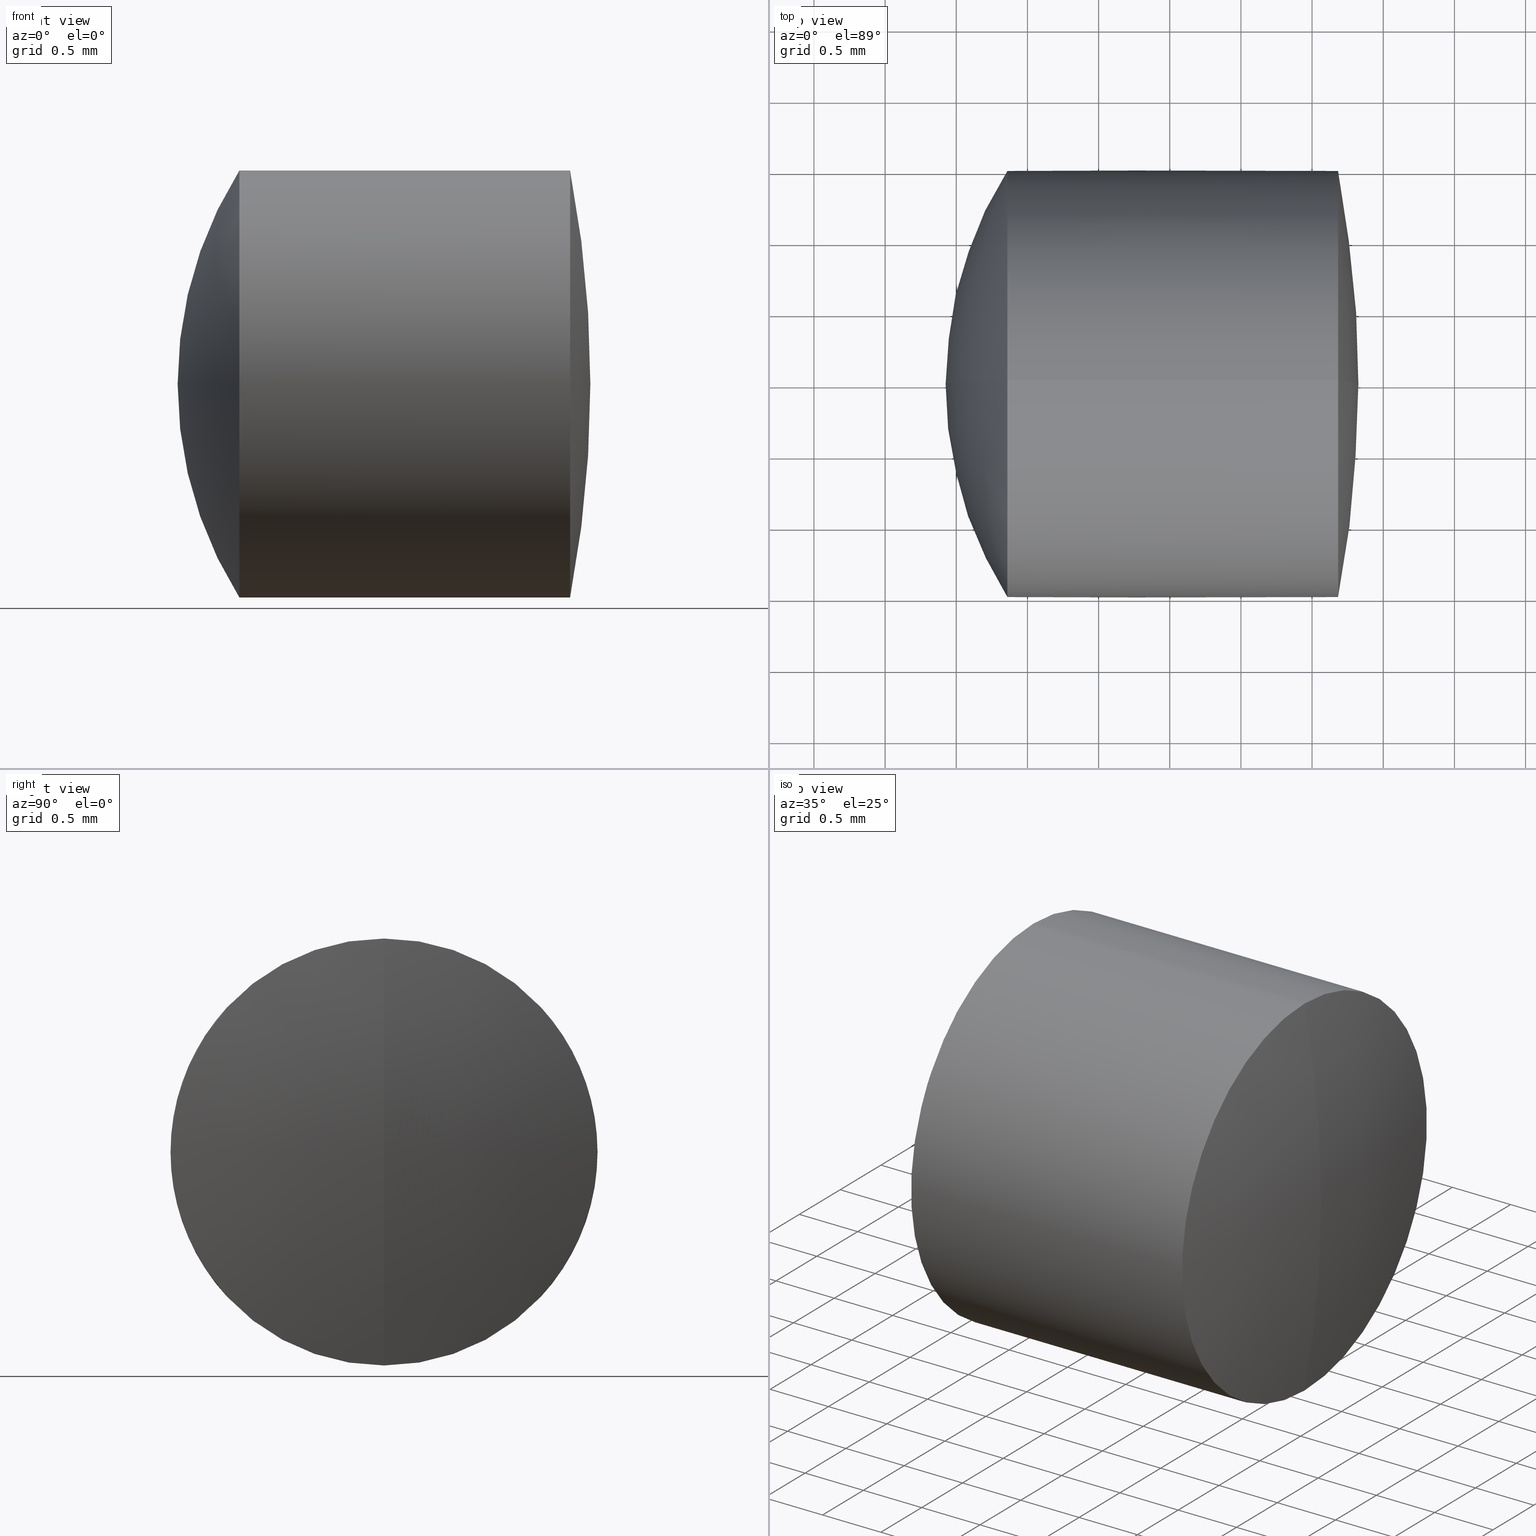
[diagram: canonical four-view strip — front | top / right | iso, engineering-drawing reading convention]
A machine part, canonical four-view strip (front | top / right | iso — engineering-drawing reading convention). The complete STEP part file that produces these views, byte-faithful:
ISO-10303-21;
HEADER;
FILE_DESCRIPTION (( 'STEP AP214' ),
    '1' );
FILE_NAME ('145000.STEP',
    '2019-08-09T06:44:41',
    ( 'user' ),
    ( '΢���й�' ),
    'SwSTEP 2.0',
    'SolidWorks 2016',
    '' );
FILE_SCHEMA (( 'AUTOMOTIVE_DESIGN' ));
ENDSEC;

DATA;
#1 = DIRECTION ( 'NONE',  ( -1.000000000000000000, -0.0000000000000000000, -0.0000000000000000000 ) ) ;
#2 = AXIS2_PLACEMENT_3D ( 'NONE', #113, #85, #119 ) ;
#3 =( LENGTH_UNIT ( ) NAMED_UNIT ( * ) SI_UNIT ( .MILLI., .METRE. ) );
#4 = ORIENTED_EDGE ( 'NONE', *, *, #343, .F. ) ;
#5 = CARTESIAN_POINT ( 'NONE',  ( 0.3590600832153031400, 0.0000000000000000000, 0.0000000000000000000 ) ) ;
#6 = AXIS2_PLACEMENT_3D ( 'NONE', #169, #331, #142 ) ;
#7 = DIRECTION ( 'NONE',  ( 0.0000000000000000000, -1.000000000000000000, 0.0000000000000000000 ) ) ;
#8 = DIRECTION ( 'NONE',  ( 0.0000000000000000000, 1.000000000000000000, -0.0000000000000000000 ) ) ;
#9 = PRODUCT_RELATED_PRODUCT_CATEGORY ( 'part', '', ( #313 ) ) ;
#10 = DIRECTION ( 'NONE',  ( 0.0000000000000000000, 1.224646799147353200E-016, -1.000000000000000000 ) ) ;
#11 =( GEOMETRIC_REPRESENTATION_CONTEXT ( 3 ) GLOBAL_UNCERTAINTY_ASSIGNED_CONTEXT ( ( #160 ) ) GLOBAL_UNIT_ASSIGNED_CONTEXT ( ( #321, #134, #288 ) ) REPRESENTATION_CONTEXT ( 'NONE', 'WORKASPACE' ) );
#12 = VERTEX_POINT ( 'NONE', #276 ) ;
#13 = DIRECTION ( 'NONE',  ( 0.0000000000000000000, 0.0000000000000000000, 1.000000000000000000 ) ) ;
#14 = SPHERICAL_SURFACE ( 'NONE', #173, 1.848000000000013600 ) ;
#15 = EDGE_CURVE ( 'NONE', #262, #80, #70, .T. ) ;
#16 = ORIENTED_EDGE ( 'NONE', *, *, #116, .T. ) ;
#17 = ORIENTED_EDGE ( 'NONE', *, *, #205, .F. ) ;
#18 = ADVANCED_FACE ( 'NONE', ( #214 ), #78, .T. ) ;
#19 = CYLINDRICAL_SURFACE ( 'NONE', #48, 1.500000000000000000 ) ;
#20 = CYLINDRICAL_SURFACE ( 'NONE', #2, 1.500000000000000000 ) ;
#21 = CARTESIAN_POINT ( 'NONE',  ( 2.825212435233174900, 0.0000000000000000000, -4.874094260606465300E-016 ) ) ;
#22 = CARTESIAN_POINT ( 'NONE',  ( 1.256612268473860800, 0.0000000000000000000, -1.500000000000000000 ) ) ;
#23 = SURFACE_STYLE_FILL_AREA ( #216 ) ;
#24 = FILL_AREA_STYLE ('',( #136 ) ) ;
#25 = ORIENTED_EDGE ( 'NONE', *, *, #277, .F. ) ;
#26 = CARTESIAN_POINT ( 'NONE',  ( 0.1772124352331610800, 0.0000000000000000000, 0.0000000000000000000 ) ) ;
#27 =( GEOMETRIC_REPRESENTATION_CONTEXT ( 3 ) GLOBAL_UNCERTAINTY_ASSIGNED_CONTEXT ( ( #92 ) ) GLOBAL_UNIT_ASSIGNED_CONTEXT ( ( #259, #72, #232 ) ) REPRESENTATION_CONTEXT ( 'NONE', 'WORKASPACE' ) );
#28 = VERTEX_POINT ( 'NONE', #146 ) ;
#29 = CARTESIAN_POINT ( 'NONE',  ( -0.5519199926577972300, 0.0000000000000000000, 1.500000000000000000 ) ) ;
#30 = SURFACE_SIDE_STYLE ('',( #23 ) ) ;
#31 = CARTESIAN_POINT ( 'NONE',  ( -5.134787564766825500, 0.0000000000000000000, 0.0000000000000000000 ) ) ;
#32 = CIRCLE ( 'NONE', #295, 1.500000000000000000 ) ;
#33 = FACE_OUTER_BOUND ( 'NONE', #247, .T. ) ;
#34 = UNCERTAINTY_MEASURE_WITH_UNIT (LENGTH_MEASURE( 1.000000000000000100E-005 ), #193, 'distance_accuracy_value', 'NONE');
#35 = ORIENTED_EDGE ( 'NONE', *, *, #343, .T. ) ;
#36 = CARTESIAN_POINT ( 'NONE',  ( 2.735212435233160800, 0.0000000000000000000, -7.764961720386270900E-019 ) ) ;
#37 = DIRECTION ( 'NONE',  ( 0.0000000000000000000, 1.000000000000000000, -0.0000000000000000000 ) ) ;
#38 = STYLED_ITEM ( 'NONE', ( #345 ), #221 ) ;
#39 = ORIENTED_EDGE ( 'NONE', *, *, #205, .T. ) ;
#40 = AXIS2_PLACEMENT_3D ( 'NONE', #285, #96, #258 ) ;
#41 = CYLINDRICAL_SURFACE ( 'NONE', #120, 1.500000000000000000 ) ;
#42 = ORIENTED_EDGE ( 'NONE', *, *, #129, .F. ) ;
#43 = VECTOR ( 'NONE', #213, 1000.000000000000000 ) ;
#44 = ORIENTED_EDGE ( 'NONE', *, *, #150, .T. ) ;
#45 = ADVANCED_FACE ( 'NONE', ( #122 ), #149, .T. ) ;
#46 = PRESENTATION_LAYER_ASSIGNMENT (  '', '', ( #38 ) ) ;
#47 = ORIENTED_EDGE ( 'NONE', *, *, #273, .F. ) ;
#48 = AXIS2_PLACEMENT_3D ( 'NONE', #223, #157, #13 ) ;
#49 = CYLINDRICAL_SURFACE ( 'NONE', #133, 1.500000000000000000 ) ;
#50 = CIRCLE ( 'NONE', #89, 1.500000000000000000 ) ;
#51 = DIRECTION ( 'NONE',  ( 0.0000000000000000000, 1.000000000000000000, 0.0000000000000000000 ) ) ;
#52 = CARTESIAN_POINT ( 'NONE',  ( -0.5519199926577972300, 0.0000000000000000000, 0.0000000000000000000 ) ) ;
#53 = DIRECTION ( 'NONE',  ( -1.000000000000000000, -0.0000000000000000000, -0.0000000000000000000 ) ) ;
#54 = DIRECTION ( 'NONE',  ( 0.0000000000000000000, 0.0000000000000000000, 1.000000000000000000 ) ) ;
#55 = ORIENTED_EDGE ( 'NONE', *, *, #129, .T. ) ;
#56 = PRESENTATION_LAYER_ASSIGNMENT (  '', '', ( #97 ) ) ;
#57 = DIRECTION ( 'NONE',  ( 0.0000000000000000000, -1.224646799147353200E-016, 1.000000000000000000 ) ) ;
#58 = APPLICATION_PROTOCOL_DEFINITION ( 'draft international standard', 'automotive_design', 1998, #240 ) ;
#59 = AXIS2_PLACEMENT_3D ( 'NONE', #328, #139, #294 ) ;
#60 = APPLICATION_CONTEXT ( 'automotive_design' ) ;
#61 = EDGE_LOOP ( 'NONE', ( #39, #320, #47 ) ) ;
#62 = CARTESIAN_POINT ( 'NONE',  ( 0.1772124352331610800, 0.0000000000000000000, 0.0000000000000000000 ) ) ;
#63 = VECTOR ( 'NONE', #104, 1000.000000000000000 ) ;
#64 = ORIENTED_EDGE ( 'NONE', *, *, #168, .F. ) ;
#65 = DIRECTION ( 'NONE',  ( -0.0000000000000000000, -1.000000000000000000, -0.0000000000000000000 ) ) ;
#66 = EDGE_CURVE ( 'NONE', #124, #256, #284, .T. ) ;
#67 = ORIENTED_EDGE ( 'NONE', *, *, #155, .F. ) ;
#68 = EDGE_LOOP ( 'NONE', ( #141, #309, #93 ) ) ;
#69 = ADVANCED_FACE ( 'NONE', ( #195 ), #49, .T. ) ;
#70 = CIRCLE ( 'NONE', #90, 7.960000000000000000 ) ;
#71 = EDGE_LOOP ( 'NONE', ( #153, #117, #64 ) ) ;
#72 =( NAMED_UNIT ( * ) PLANE_ANGLE_UNIT ( ) SI_UNIT ( $, .RADIAN. ) );
#73 = DIRECTION ( 'NONE',  ( -1.000000000000000000, -0.0000000000000000000, -0.0000000000000000000 ) ) ;
#74 = ORIENTED_EDGE ( 'NONE', *, *, #168, .T. ) ;
#75 = CARTESIAN_POINT ( 'NONE',  ( 2.682603304314750600, 0.0000000000000000000, 0.0000000000000000000 ) ) ;
#76 = CARTESIAN_POINT ( 'NONE',  ( 2.735212435233160800, 0.0000000000000000000, -7.764961720386270900E-019 ) ) ;
#77 = PRODUCT_CONTEXT ( 'NONE', #60, 'mechanical' ) ;
#78 = SPHERICAL_SURFACE ( 'NONE', #231, 2.810000000000000100 ) ;
#79 = SPHERICAL_SURFACE ( 'NONE', #283, 7.960000000000000000 ) ;
#80 = VERTEX_POINT ( 'NONE', #303 ) ;
#81 = DIRECTION ( 'NONE',  ( 0.0000000000000000000, -1.000000000000000000, -1.224646799147353200E-016 ) ) ;
#82 = APPLICATION_PROTOCOL_DEFINITION ( 'draft international standard', 'automotive_design', 1998, #60 ) ;
#83 = AXIS2_PLACEMENT_3D ( 'NONE', #264, #73, #235 ) ;
#84 = DIRECTION ( 'NONE',  ( 0.0000000000000000000, 0.0000000000000000000, -1.000000000000000000 ) ) ;
#85 = DIRECTION ( 'NONE',  ( -1.000000000000000000, -0.0000000000000000000, -0.0000000000000000000 ) ) ;
#86 = CARTESIAN_POINT ( 'NONE',  ( -0.07478756476683896800, 0.0000000000000000000, 1.712863791081644800E-016 ) ) ;
#87 = DIRECTION ( 'NONE',  ( 0.0000000000000000000, -1.000000000000000000, -1.224646799147353200E-016 ) ) ;
#88 = ORIENTED_EDGE ( 'NONE', *, *, #66, .T. ) ;
#89 = AXIS2_PLACEMENT_3D ( 'NONE', #236, #53, #211 ) ;
#90 = AXIS2_PLACEMENT_3D ( 'NONE', #248, #87, #10 ) ;
#91 = COLOUR_RGB ( '',1.000000000000000000, 1.000000000000000000, 1.000000000000000000 ) ;
#92 = UNCERTAINTY_MEASURE_WITH_UNIT (LENGTH_MEASURE( 1.000000000000000100E-005 ), #259, 'distance_accuracy_value', 'NONE');
#93 = ORIENTED_EDGE ( 'NONE', *, *, #176, .F. ) ;
#94 = ADVANCED_FACE ( 'NONE', ( #99 ), #14, .F. ) ;
#95 = ORIENTED_EDGE ( 'NONE', *, *, #151, .T. ) ;
#96 = DIRECTION ( 'NONE',  ( 0.0000000000000000000, -1.000000000000000000, 0.0000000000000000000 ) ) ;
#97 = STYLED_ITEM ( 'NONE', ( #181 ), #257 ) ;
#98 = SURFACE_STYLE_USAGE ( .BOTH. , #286 ) ;
#99 = FACE_OUTER_BOUND ( 'NONE', #300, .T. ) ;
#100 = AXIS2_PLACEMENT_3D ( 'NONE', #200, #37, #147 ) ;
#101 = LINE ( 'NONE', #266, #43 ) ;
#102 = FACE_OUTER_BOUND ( 'NONE', #71, .T. ) ;
#103 = ORIENTED_EDGE ( 'NONE', *, *, #297, .F. ) ;
#104 = DIRECTION ( 'NONE',  ( -1.000000000000000000, -0.0000000000000000000, -0.0000000000000000000 ) ) ;
#105 = CARTESIAN_POINT ( 'NONE',  ( 2.735212435233160800, 0.0000000000000000000, -7.764961720386270900E-019 ) ) ;
#106 = DIRECTION ( 'NONE',  ( 0.0000000000000000000, 0.0000000000000000000, -1.000000000000000000 ) ) ;
#107 = AXIS2_PLACEMENT_3D ( 'NONE', #105, #212, #325 ) ;
#108 = DIRECTION ( 'NONE',  ( 0.0000000000000000000, 0.0000000000000000000, 1.000000000000000000 ) ) ;
#109 = EDGE_CURVE ( 'NONE', #12, #249, #318, .T. ) ;
#110 = DIRECTION ( 'NONE',  ( -1.000000000000000000, -0.0000000000000000000, -0.0000000000000000000 ) ) ;
#111 =( NAMED_UNIT ( * ) SI_UNIT ( $, .STERADIAN. ) SOLID_ANGLE_UNIT ( ) );
#112 = DIRECTION ( 'NONE',  ( -0.0000000000000000000, -1.000000000000000000, -0.0000000000000000000 ) ) ;
#113 = CARTESIAN_POINT ( 'NONE',  ( -0.8160621761658039000, 0.0000000000000000000, 0.0000000000000000000 ) ) ;
#114 = ORIENTED_EDGE ( 'NONE', *, *, #154, .F. ) ;
#115 = CIRCLE ( 'NONE', #315, 1.500000000000000000 ) ;
#116 = EDGE_CURVE ( 'NONE', #272, #12, #202, .T. ) ;
#117 = ORIENTED_EDGE ( 'NONE', *, *, #297, .T. ) ;
#118 = DIRECTION ( 'NONE',  ( 0.0000000000000000000, 0.0000000000000000000, 1.000000000000000000 ) ) ;
#119 = DIRECTION ( 'NONE',  ( 0.0000000000000000000, 0.0000000000000000000, 1.000000000000000000 ) ) ;
#120 = AXIS2_PLACEMENT_3D ( 'NONE', #52, #209, #263 ) ;
#121 = ORIENTED_EDGE ( 'NONE', *, *, #109, .F. ) ;
#122 = FACE_OUTER_BOUND ( 'NONE', #222, .T. ) ;
#123 = LINE ( 'NONE', #289, #63 ) ;
#124 = VERTEX_POINT ( 'NONE', #242 ) ;
#125 = ADVANCED_FACE ( 'NONE', ( #185 ), #333, .T. ) ;
#126 = ORIENTED_EDGE ( 'NONE', *, *, #15, .T. ) ;
#127 = FACE_OUTER_BOUND ( 'NONE', #327, .T. ) ;
#128 = AXIS2_PLACEMENT_3D ( 'NONE', #269, #81, #241 ) ;
#129 = EDGE_CURVE ( 'NONE', #80, #12, #339, .T. ) ;
#130 = VERTEX_POINT ( 'NONE', #166 ) ;
#131 = COLOUR_RGB ( '',1.000000000000000000, 1.000000000000000000, 1.000000000000000000 ) ;
#132 = FILL_AREA_STYLE ('',( #316 ) ) ;
#133 = AXIS2_PLACEMENT_3D ( 'NONE', #336, #220, #118 ) ;
#134 =( NAMED_UNIT ( * ) PLANE_ANGLE_UNIT ( ) SI_UNIT ( $, .RADIAN. ) );
#135 = DIRECTION ( 'NONE',  ( 0.0000000000000000000, -1.224646799147353200E-016, 1.000000000000000000 ) ) ;
#136 = FILL_AREA_STYLE_COLOUR ( '', #131 ) ;
#137 = PRODUCT_DEFINITION_CONTEXT ( 'detailed design', #240, 'design' ) ;
#138 = DIRECTION ( 'NONE',  ( -1.000000000000000000, -0.0000000000000000000, -0.0000000000000000000 ) ) ;
#139 = DIRECTION ( 'NONE',  ( -1.000000000000000000, -0.0000000000000000000, -0.0000000000000000000 ) ) ;
#140 = CARTESIAN_POINT ( 'NONE',  ( 0.1772124352331610800, 0.0000000000000000000, 0.0000000000000000000 ) ) ;
#141 = ORIENTED_EDGE ( 'NONE', *, *, #66, .F. ) ;
#142 = DIRECTION ( 'NONE',  ( 0.0000000000000000000, 0.0000000000000000000, 1.000000000000000000 ) ) ;
#143 = EDGE_CURVE ( 'NONE', #191, #312, #251, .T. ) ;
#144 = ORIENTED_EDGE ( 'NONE', *, *, #154, .T. ) ;
#145 = DIRECTION ( 'NONE',  ( 0.0000000000000000000, 0.0000000000000000000, -1.000000000000000000 ) ) ;
#146 = CARTESIAN_POINT ( 'NONE',  ( 2.682603304314751000, 0.0000000000000000000, -1.500000000000000000 ) ) ;
#147 = DIRECTION ( 'NONE',  ( 0.0000000000000000000, 0.0000000000000000000, 1.000000000000000000 ) ) ;
#148 = AXIS2_PLACEMENT_3D ( 'NONE', #306, #65, #274 ) ;
#149 = SPHERICAL_SURFACE ( 'NONE', #148, 7.960000000000000000 ) ;
#150 = EDGE_CURVE ( 'NONE', #28, #249, #310, .T. ) ;
#151 = EDGE_CURVE ( 'NONE', #249, #12, #245, .T. ) ;
#152 = ADVANCED_FACE ( 'NONE', ( #188 ), #178, .F. ) ;
#153 = ORIENTED_EDGE ( 'NONE', *, *, #15, .F. ) ;
#154 = EDGE_CURVE ( 'NONE', #256, #130, #101, .T. ) ;
#155 = EDGE_CURVE ( 'NONE', #28, #80, #32, .T. ) ;
#156 = CIRCLE ( 'NONE', #337, 1.500000000000000000 ) ;
#157 = DIRECTION ( 'NONE',  ( -1.000000000000000000, -0.0000000000000000000, -0.0000000000000000000 ) ) ;
#158 = AXIS2_PLACEMENT_3D ( 'NONE', #198, #8, #172 ) ;
#159 = CARTESIAN_POINT ( 'NONE',  ( 2.025212435233174600, 0.0000000000000000000, -1.131573642412162700E-016 ) ) ;
#160 = UNCERTAINTY_MEASURE_WITH_UNIT (LENGTH_MEASURE( 1.000000000000000100E-005 ), #321, 'distance_accuracy_value', 'NONE');
#161 = ORIENTED_EDGE ( 'NONE', *, *, #116, .F. ) ;
#162 = CARTESIAN_POINT ( 'NONE',  ( 0.1772124352331610800, 0.0000000000000000000, 0.0000000000000000000 ) ) ;
#163 = DIRECTION ( 'NONE',  ( 0.0000000000000000000, 0.0000000000000000000, 1.000000000000000000 ) ) ;
#164 = DIRECTION ( 'NONE',  ( -0.0000000000000000000, -1.000000000000000000, -0.0000000000000000000 ) ) ;
#165 = AXIS2_PLACEMENT_3D ( 'NONE', #162, #323, #135 ) ;
#166 = CARTESIAN_POINT ( 'NONE',  ( 0.3590600832153031400, 0.0000000000000000000, 1.500000000000000200 ) ) ;
#167 =( NAMED_UNIT ( * ) PLANE_ANGLE_UNIT ( ) SI_UNIT ( $, .RADIAN. ) );
#168 = EDGE_CURVE ( 'NONE', #80, #28, #319, .T. ) ;
#169 = CARTESIAN_POINT ( 'NONE',  ( 1.256612268473860800, 0.0000000000000000000, 0.0000000000000000000 ) ) ;
#170 = DIRECTION ( 'NONE',  ( -1.000000000000000000, -0.0000000000000000000, -0.0000000000000000000 ) ) ;
#171 = DIRECTION ( 'NONE',  ( 0.0000000000000000000, 0.0000000000000000000, -1.000000000000000000 ) ) ;
#172 = DIRECTION ( 'NONE',  ( 0.0000000000000000000, 0.0000000000000000000, 1.000000000000000000 ) ) ;
#173 = AXIS2_PLACEMENT_3D ( 'NONE', #334, #112, #84 ) ;
#174 = DIRECTION ( 'NONE',  ( 0.0000000000000000000, 0.0000000000000000000, 1.000000000000000000 ) ) ;
#175 = EDGE_LOOP ( 'NONE', ( #234, #88, #226 ) ) ;
#176 = EDGE_CURVE ( 'NONE', #256, #291, #115, .T. ) ;
#177 = ORIENTED_EDGE ( 'NONE', *, *, #218, .T. ) ;
#178 = SPHERICAL_SURFACE ( 'NONE', #324, 1.848000000000013600 ) ;
#179 = EDGE_LOOP ( 'NONE', ( #206, #177, #17, #114 ) ) ;
#180 = ADVANCED_FACE ( 'NONE', ( #252 ), #335, .T. ) ;
#181 = PRESENTATION_STYLE_ASSIGNMENT (( #98 ) ) ;
#182 = CLOSED_SHELL ( 'NONE', ( #254, #69, #18, #180, #342, #125 ) ) ;
#183 = MECHANICAL_DESIGN_GEOMETRIC_PRESENTATION_REPRESENTATION (  '', ( #38 ), #11 ) ;
#184 = EDGE_CURVE ( 'NONE', #291, #256, #50, .T. ) ;
#185 = FACE_OUTER_BOUND ( 'NONE', #175, .T. ) ;
#186 = CIRCLE ( 'NONE', #165, 1.848000000000013600 ) ;
#187 = ORIENTED_EDGE ( 'NONE', *, *, #277, .T. ) ;
#188 = FACE_OUTER_BOUND ( 'NONE', #260, .T. ) ;
#189 = SURFACE_SIDE_STYLE ('',( #271 ) ) ;
#190 = CARTESIAN_POINT ( 'NONE',  ( 1.256612268473861000, 0.0000000000000000000, 0.0000000000000000000 ) ) ;
#191 = VERTEX_POINT ( 'NONE', #265 ) ;
#192 = SURFACE_STYLE_USAGE ( .BOTH. , #30 ) ;
#193 =( LENGTH_UNIT ( ) NAMED_UNIT ( * ) SI_UNIT ( .MILLI., .METRE. ) );
#194 = STYLED_ITEM ( 'NONE', ( #305 ), #322 ) ;
#195 = FACE_OUTER_BOUND ( 'NONE', #179, .T. ) ;
#196 = CLOSED_SHELL ( 'NONE', ( #229, #45, #94, #152, #314, #281 ) ) ;
#197 = CARTESIAN_POINT ( 'NONE',  ( 0.1772124352331610800, 0.0000000000000000000, 0.0000000000000000000 ) ) ;
#198 = CARTESIAN_POINT ( 'NONE',  ( -5.134787564766825500, 0.0000000000000000000, 0.0000000000000000000 ) ) ;
#199 = DIRECTION ( 'NONE',  ( 0.0000000000000000000, 1.000000000000000000, 0.0000000000000000000 ) ) ;
#200 = CARTESIAN_POINT ( 'NONE',  ( 0.1772124352331610800, 0.0000000000000000000, 0.0000000000000000000 ) ) ;
#201 = AXIS2_PLACEMENT_3D ( 'NONE', #197, #7, #171 ) ;
#202 = CIRCLE ( 'NONE', #128, 1.848000000000013600 ) ;
#203 = FACE_OUTER_BOUND ( 'NONE', #253, .T. ) ;
#204 = EDGE_CURVE ( 'NONE', #124, #291, #186, .T. ) ;
#205 = EDGE_CURVE ( 'NONE', #130, #191, #340, .T. ) ;
#206 = ORIENTED_EDGE ( 'NONE', *, *, #176, .T. ) ;
#207 = PRESENTATION_LAYER_ASSIGNMENT (  '', '', ( #194 ) ) ;
#208 = CARTESIAN_POINT ( 'NONE',  ( 1.256612268473861000, 0.0000000000000000000, 1.500000000000000000 ) ) ;
#209 = DIRECTION ( 'NONE',  ( -1.000000000000000000, -0.0000000000000000000, -0.0000000000000000000 ) ) ;
#210 = PRODUCT_DEFINITION_SHAPE ( 'NONE', 'NONE',  #317 ) ;
#211 = DIRECTION ( 'NONE',  ( 0.0000000000000000000, 0.0000000000000000000, 1.000000000000000000 ) ) ;
#212 = DIRECTION ( 'NONE',  ( 0.0000000000000000000, 1.000000000000000000, 0.0000000000000000000 ) ) ;
#213 = DIRECTION ( 'NONE',  ( -1.000000000000000000, -0.0000000000000000000, -0.0000000000000000000 ) ) ;
#214 = FACE_OUTER_BOUND ( 'NONE', #61, .T. ) ;
#215 = DIRECTION ( 'NONE',  ( 0.0000000000000000000, 0.0000000000000000000, 1.000000000000000000 ) ) ;
#216 = FILL_AREA_STYLE ('',( #219 ) ) ;
#217 = ORIENTED_EDGE ( 'NONE', *, *, #155, .T. ) ;
#218 = EDGE_CURVE ( 'NONE', #291, #191, #123, .T. ) ;
#219 = FILL_AREA_STYLE_COLOUR ( '', #91 ) ;
#220 = DIRECTION ( 'NONE',  ( -1.000000000000000000, -0.0000000000000000000, -0.0000000000000000000 ) ) ;
#221 = MANIFOLD_SOLID_BREP ( '��ת2', #196 ) ;
#222 = EDGE_LOOP ( 'NONE', ( #103, #126, #67 ) ) ;
#223 = CARTESIAN_POINT ( 'NONE',  ( -0.5519199926577972300, 0.0000000000000000000, 0.0000000000000000000 ) ) ;
#224 = VECTOR ( 'NONE', #110, 1000.000000000000000 ) ;
#225 = SURFACE_STYLE_FILL_AREA ( #132 ) ;
#226 = ORIENTED_EDGE ( 'NONE', *, *, #184, .F. ) ;
#227 = MECHANICAL_DESIGN_GEOMETRIC_PRESENTATION_REPRESENTATION (  '', ( #194 ), #243 ) ;
#228 = EDGE_LOOP ( 'NONE', ( #244, #35, #338 ) ) ;
#229 = ADVANCED_FACE ( 'NONE', ( #203 ), #41, .T. ) ;
#230 = SHAPE_DEFINITION_REPRESENTATION ( #210, #322 ) ;
#231 = AXIS2_PLACEMENT_3D ( 'NONE', #36, #199, #174 ) ;
#232 =( NAMED_UNIT ( * ) SI_UNIT ( $, .STERADIAN. ) SOLID_ANGLE_UNIT ( ) );
#233 = VECTOR ( 'NONE', #267, 1000.000000000000000 ) ;
#234 = ORIENTED_EDGE ( 'NONE', *, *, #204, .F. ) ;
#235 = DIRECTION ( 'NONE',  ( 0.0000000000000000000, 0.0000000000000000000, 1.000000000000000000 ) ) ;
#236 = CARTESIAN_POINT ( 'NONE',  ( 1.256612268473861000, 0.0000000000000000000, 0.0000000000000000000 ) ) ;
#237 = DIRECTION ( 'NONE',  ( -1.000000000000000000, -0.0000000000000000000, -0.0000000000000000000 ) ) ;
#238 = MECHANICAL_DESIGN_GEOMETRIC_PRESENTATION_REPRESENTATION (  '', ( #97 ), #27 ) ;
#239 = DIRECTION ( 'NONE',  ( -0.0000000000000000000, 1.000000000000000000, 1.224646799147353200E-016 ) ) ;
#240 = APPLICATION_CONTEXT ( 'automotive_design' ) ;
#241 = DIRECTION ( 'NONE',  ( 0.0000000000000000000, 1.224646799147353200E-016, -1.000000000000000000 ) ) ;
#242 = CARTESIAN_POINT ( 'NONE',  ( 2.025212435233174600, 0.0000000000000000000, 1.131573642412162700E-016 ) ) ;
#243 =( GEOMETRIC_REPRESENTATION_CONTEXT ( 3 ) GLOBAL_UNCERTAINTY_ASSIGNED_CONTEXT ( ( #290 ) ) GLOBAL_UNIT_ASSIGNED_CONTEXT ( ( #3, #167, #330 ) ) REPRESENTATION_CONTEXT ( 'NONE', 'WORKASPACE' ) );
#244 = ORIENTED_EDGE ( 'NONE', *, *, #143, .F. ) ;
#245 = CIRCLE ( 'NONE', #59, 1.500000000000000000 ) ;
#246 = CIRCLE ( 'NONE', #100, 1.848000000000013600 ) ;
#247 = EDGE_LOOP ( 'NONE', ( #282, #217, #55, #270 ) ) ;
#248 = CARTESIAN_POINT ( 'NONE',  ( -5.134787564766825500, 0.0000000000000000000, 0.0000000000000000000 ) ) ;
#249 = VERTEX_POINT ( 'NONE', #22 ) ;
#250 = AXIS2_PLACEMENT_3D ( 'NONE', #75, #237, #54 ) ;
#251 = CIRCLE ( 'NONE', #293, 2.810000000000000100 ) ;
#252 = FACE_OUTER_BOUND ( 'NONE', #228, .T. ) ;
#253 = EDGE_LOOP ( 'NONE', ( #74, #44, #121, #42 ) ) ;
#254 = ADVANCED_FACE ( 'NONE', ( #299 ), #261, .T. ) ;
#255 =( GEOMETRIC_REPRESENTATION_CONTEXT ( 3 ) GLOBAL_UNCERTAINTY_ASSIGNED_CONTEXT ( ( #34 ) ) GLOBAL_UNIT_ASSIGNED_CONTEXT ( ( #193, #302, #111 ) ) REPRESENTATION_CONTEXT ( 'NONE', 'WORKASPACE' ) );
#256 = VERTEX_POINT ( 'NONE', #208 ) ;
#257 = MANIFOLD_SOLID_BREP ( '��ת1', #182 ) ;
#258 = DIRECTION ( 'NONE',  ( 0.0000000000000000000, 0.0000000000000000000, -1.000000000000000000 ) ) ;
#259 =( LENGTH_UNIT ( ) NAMED_UNIT ( * ) SI_UNIT ( .MILLI., .METRE. ) );
#260 = EDGE_LOOP ( 'NONE', ( #161, #187, #95 ) ) ;
#261 = SPHERICAL_SURFACE ( 'NONE', #287, 1.848000000000013600 ) ;
#262 = VERTEX_POINT ( 'NONE', #21 ) ;
#263 = DIRECTION ( 'NONE',  ( 0.0000000000000000000, 0.0000000000000000000, 1.000000000000000000 ) ) ;
#264 = CARTESIAN_POINT ( 'NONE',  ( 0.3590600832153031400, 0.0000000000000000000, 0.0000000000000000000 ) ) ;
#265 = CARTESIAN_POINT ( 'NONE',  ( 0.3590600832153031400, 1.836970198721030200E-016, -1.500000000000000200 ) ) ;
#266 = CARTESIAN_POINT ( 'NONE',  ( -0.8160621761658039000, 0.0000000000000000000, 1.500000000000000000 ) ) ;
#267 = DIRECTION ( 'NONE',  ( -1.000000000000000000, -0.0000000000000000000, -0.0000000000000000000 ) ) ;
#268 = DIRECTION ( 'NONE',  ( 1.000000000000000000, 0.0000000000000000000, 0.0000000000000000000 ) ) ;
#269 = CARTESIAN_POINT ( 'NONE',  ( 0.1772124352331610800, 0.0000000000000000000, 0.0000000000000000000 ) ) ;
#270 = ORIENTED_EDGE ( 'NONE', *, *, #151, .F. ) ;
#271 = SURFACE_STYLE_FILL_AREA ( #24 ) ;
#272 = VERTEX_POINT ( 'NONE', #159 ) ;
#273 = EDGE_CURVE ( 'NONE', #130, #312, #279, .T. ) ;
#274 = DIRECTION ( 'NONE',  ( 0.0000000000000000000, 0.0000000000000000000, -1.000000000000000000 ) ) ;
#275 = CARTESIAN_POINT ( 'NONE',  ( 1.256612268473861000, 1.836970198721029900E-016, -1.500000000000000000 ) ) ;
#276 = CARTESIAN_POINT ( 'NONE',  ( 1.256612268473860800, -1.836970198721030200E-016, 1.500000000000000000 ) ) ;
#277 = EDGE_CURVE ( 'NONE', #272, #249, #246, .T. ) ;
#278 = AXIS2_PLACEMENT_3D ( 'NONE', #62, #301, #215 ) ;
#279 = CIRCLE ( 'NONE', #40, 2.810000000000000100 ) ;
#280 = ORIENTED_EDGE ( 'NONE', *, *, #109, .T. ) ;
#281 = ADVANCED_FACE ( 'NONE', ( #33 ), #19, .T. ) ;
#282 = ORIENTED_EDGE ( 'NONE', *, *, #150, .F. ) ;
#283 = AXIS2_PLACEMENT_3D ( 'NONE', #31, #307, #145 ) ;
#284 = CIRCLE ( 'NONE', #201, 1.848000000000013600 ) ;
#285 = CARTESIAN_POINT ( 'NONE',  ( 2.735212435233160800, 0.0000000000000000000, -7.764961720386270900E-019 ) ) ;
#286 = SURFACE_SIDE_STYLE ('',( #225 ) ) ;
#287 = AXIS2_PLACEMENT_3D ( 'NONE', #26, #51, #346 ) ;
#288 =( NAMED_UNIT ( * ) SI_UNIT ( $, .STERADIAN. ) SOLID_ANGLE_UNIT ( ) );
#289 = CARTESIAN_POINT ( 'NONE',  ( -0.8160621761658039000, 1.836970198721029900E-016, -1.500000000000000000 ) ) ;
#290 = UNCERTAINTY_MEASURE_WITH_UNIT (LENGTH_MEASURE( 1.000000000000000100E-005 ), #3, 'distance_accuracy_value', 'NONE');
#291 = VERTEX_POINT ( 'NONE', #275 ) ;
#292 = DIRECTION ( 'NONE',  ( 0.0000000000000000000, 0.0000000000000000000, 1.000000000000000000 ) ) ;
#293 = AXIS2_PLACEMENT_3D ( 'NONE', #76, #239, #57 ) ;
#294 = DIRECTION ( 'NONE',  ( 0.0000000000000000000, 0.0000000000000000000, 1.000000000000000000 ) ) ;
#295 = AXIS2_PLACEMENT_3D ( 'NONE', #326, #138, #292 ) ;
#296 = COLOUR_RGB ( '',1.000000000000000000, 1.000000000000000000, 1.000000000000000000 ) ;
#297 = EDGE_CURVE ( 'NONE', #262, #28, #311, .T. ) ;
#298 = CARTESIAN_POINT ( 'NONE',  ( 0.0000000000000000000, 0.0000000000000000000, 0.0000000000000000000 ) ) ;
#299 = FACE_OUTER_BOUND ( 'NONE', #68, .T. ) ;
#300 = EDGE_LOOP ( 'NONE', ( #25, #16, #280 ) ) ;
#301 = DIRECTION ( 'NONE',  ( 0.0000000000000000000, 1.000000000000000000, 0.0000000000000000000 ) ) ;
#302 =( NAMED_UNIT ( * ) PLANE_ANGLE_UNIT ( ) SI_UNIT ( $, .RADIAN. ) );
#303 = CARTESIAN_POINT ( 'NONE',  ( 2.682603304314751000, -1.836970198721029900E-016, 1.500000000000000000 ) ) ;
#304 = AXIS2_PLACEMENT_3D ( 'NONE', #298, #108, #268 ) ;
#305 = PRESENTATION_STYLE_ASSIGNMENT (( #192 ) ) ;
#306 = CARTESIAN_POINT ( 'NONE',  ( -5.134787564766825500, 0.0000000000000000000, 0.0000000000000000000 ) ) ;
#307 = DIRECTION ( 'NONE',  ( -0.0000000000000000000, -1.000000000000000000, -0.0000000000000000000 ) ) ;
#308 = ORIENTED_EDGE ( 'NONE', *, *, #184, .T. ) ;
#309 = ORIENTED_EDGE ( 'NONE', *, *, #204, .T. ) ;
#310 = LINE ( 'NONE', #329, #233 ) ;
#311 = CIRCLE ( 'NONE', #158, 7.960000000000000000 ) ;
#312 = VERTEX_POINT ( 'NONE', #86 ) ;
#313 = PRODUCT ( '145000', '145000', '', ( #77 ) ) ;
#314 = ADVANCED_FACE ( 'NONE', ( #102 ), #79, .T. ) ;
#315 = AXIS2_PLACEMENT_3D ( 'NONE', #190, #1, #163 ) ;
#316 = FILL_AREA_STYLE_COLOUR ( '', #296 ) ;
#317 = PRODUCT_DEFINITION ( 'δ֪', '', #341, #137 ) ;
#318 = CIRCLE ( 'NONE', #6, 1.500000000000000000 ) ;
#319 = CIRCLE ( 'NONE', #250, 1.500000000000000000 ) ;
#320 = ORIENTED_EDGE ( 'NONE', *, *, #143, .T. ) ;
#321 =( LENGTH_UNIT ( ) NAMED_UNIT ( * ) SI_UNIT ( .MILLI., .METRE. ) );
#322 = ADVANCED_BREP_SHAPE_REPRESENTATION ( '145000', ( #257, #221, #304 ), #255 ) ;
#323 = DIRECTION ( 'NONE',  ( -0.0000000000000000000, 1.000000000000000000, 1.224646799147353200E-016 ) ) ;
#324 = AXIS2_PLACEMENT_3D ( 'NONE', #140, #164, #106 ) ;
#325 = DIRECTION ( 'NONE',  ( 0.0000000000000000000, 0.0000000000000000000, 1.000000000000000000 ) ) ;
#326 = CARTESIAN_POINT ( 'NONE',  ( 2.682603304314750600, 0.0000000000000000000, 0.0000000000000000000 ) ) ;
#327 = EDGE_LOOP ( 'NONE', ( #344, #308, #144, #4 ) ) ;
#328 = CARTESIAN_POINT ( 'NONE',  ( 1.256612268473860800, 0.0000000000000000000, 0.0000000000000000000 ) ) ;
#329 = CARTESIAN_POINT ( 'NONE',  ( -0.5519199926577972300, 1.836970198721029900E-016, -1.500000000000000000 ) ) ;
#330 =( NAMED_UNIT ( * ) SI_UNIT ( $, .STERADIAN. ) SOLID_ANGLE_UNIT ( ) );
#331 = DIRECTION ( 'NONE',  ( -1.000000000000000000, -0.0000000000000000000, -0.0000000000000000000 ) ) ;
#332 = DIRECTION ( 'NONE',  ( 0.0000000000000000000, 0.0000000000000000000, 1.000000000000000000 ) ) ;
#333 = SPHERICAL_SURFACE ( 'NONE', #278, 1.848000000000013600 ) ;
#334 = CARTESIAN_POINT ( 'NONE',  ( 0.1772124352331610800, 0.0000000000000000000, 0.0000000000000000000 ) ) ;
#335 = SPHERICAL_SURFACE ( 'NONE', #107, 2.810000000000000100 ) ;
#336 = CARTESIAN_POINT ( 'NONE',  ( -0.8160621761658039000, 0.0000000000000000000, 0.0000000000000000000 ) ) ;
#337 = AXIS2_PLACEMENT_3D ( 'NONE', #5, #170, #332 ) ;
#338 = ORIENTED_EDGE ( 'NONE', *, *, #273, .T. ) ;
#339 = LINE ( 'NONE', #29, #224 ) ;
#340 = CIRCLE ( 'NONE', #83, 1.500000000000000000 ) ;
#341 = PRODUCT_DEFINITION_FORMATION_WITH_SPECIFIED_SOURCE ( '�κ�', '', #313, .NOT_KNOWN. ) ;
#342 = ADVANCED_FACE ( 'NONE', ( #127 ), #20, .T. ) ;
#343 = EDGE_CURVE ( 'NONE', #191, #130, #156, .T. ) ;
#344 = ORIENTED_EDGE ( 'NONE', *, *, #218, .F. ) ;
#345 = PRESENTATION_STYLE_ASSIGNMENT (( #347 ) ) ;
#346 = DIRECTION ( 'NONE',  ( 0.0000000000000000000, 0.0000000000000000000, 1.000000000000000000 ) ) ;
#347 = SURFACE_STYLE_USAGE ( .BOTH. , #189 ) ;
ENDSEC;
END-ISO-10303-21;
